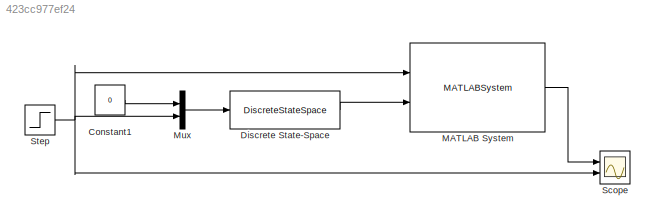
MODEL slx_423cc977ef24
KIND model
CONFIG AbsTol = auto
CONFIG EnableMultiTasking = off
CONFIG FixedStep = auto
CONFIG InitFcn = umvInit;
CONFIG MaxStep = auto
CONFIG MinStep = auto
CONFIG RelTol = 1e-3
CONFIG SampleTimeConstraint = Unconstrained
CONFIG Solver = VariableStepAuto
CONFIG SolverName = VariableStepAuto
CONFIG StartTime = 0.0
CONFIG StopTime = 10.0
BLOCK [Constant] Constant1
  SampleTime = Ts
  Value = 0
BLOCK [DiscreteStateSpace] Discrete State-Space
  A = A
  B = [B H]
  C = C
  D = [D G]
  InitialCondition = stateInit
  SampleTime = Ts
BLOCK [MATLABSystem] MATLAB System
  AMat = A
  BMat = B
  CMat = C
  DMat = D
  GMat = G
  HMat = H
  MaskDisplay = disp(['Unbiased' char(10) 'Minimum' char(10) 'Variance' char(10) 'Filter']);\nport_label('input',1,'u');\nport_label('input',2,'y');\nport_label('output',1,'ehat');
  MaskType = UMV
  ModelSourceChoice = Individual matrices
  NeUserDefined = 1
  NuUserDefined = 1
  NxUserDefined = 1
  NyUserDefined = 1
  PInit = PInit
  Ports = [2, 1]
  QMat = Q
  RMat = R
  System = UMV
  Ts = Ts
  hasKnownInput = on
  isQTimeInvariant = on
  isRTimeInvariant = on
  showEstimatedInputs = on
  showEstimatedOutput = off
  showEstimatedState = off
  showStateCovariance = off
  xInit = stateInitUmv
BLOCK [Mux] Mux
  DisplayOption = bar
  Inputs = 2
  Ports = [2, 1]
BLOCK [Scope] Scope
  Floating = off
  NumInputPorts = 2
  Ports = [2]
  ScopeSpecificationString = Simulink.scopes.TimeScopeBlockCfg('CurrentConfiguration', extmgr.ConfigurationSet(extmgr.Configuration('Core','General UI',true),extmgr.Configuration('Core','Source UI',true),extmgr.Configuration('Sources','WiredSimulink',true),extmgr.Configuration('Visuals','Time Domain',true,'SerializedDisplays',{struct('MinYLimReal','-15.47437','MaxYLimReal','21.19492','YLabelReal','','MinYLimMag','0.00000','Ma...<+1423ch>
BLOCK [Step] Step
  After = 10
  SampleTime = Ts
LINE Constant1:1 -> Mux:1
LINE Discrete State-Space:1 -> MATLAB System:2
LINE MATLAB System:1 -> Scope:1
LINE Mux:1 -> Discrete State-Space:1
NET Step:1 -> MATLAB System:1, Mux:2, Scope:2
note: NET lines group one-source signal fan-out (src -> all destinations, sorted); 1:1 wires keep LINE
